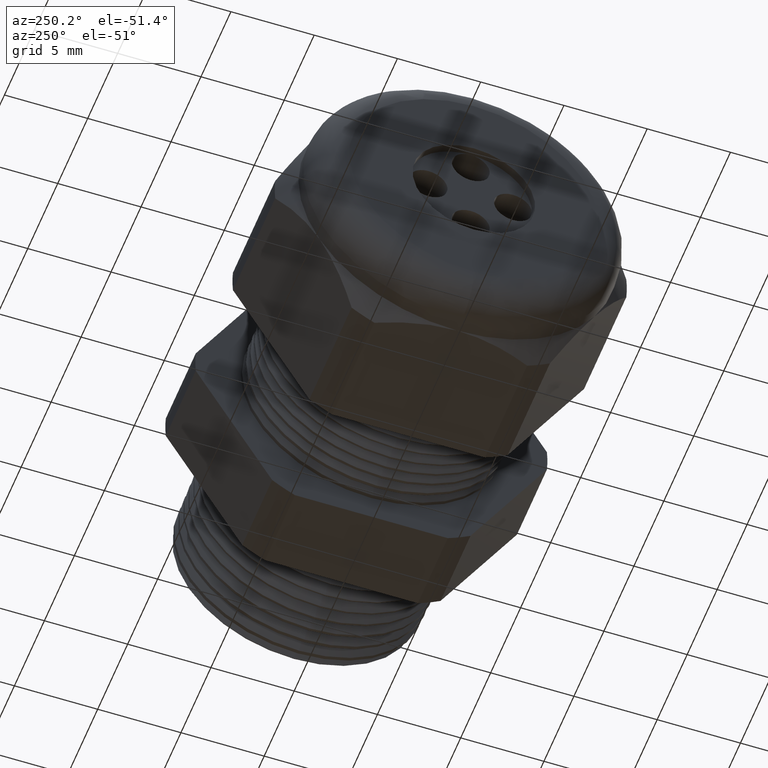
[diagram: clean part render]
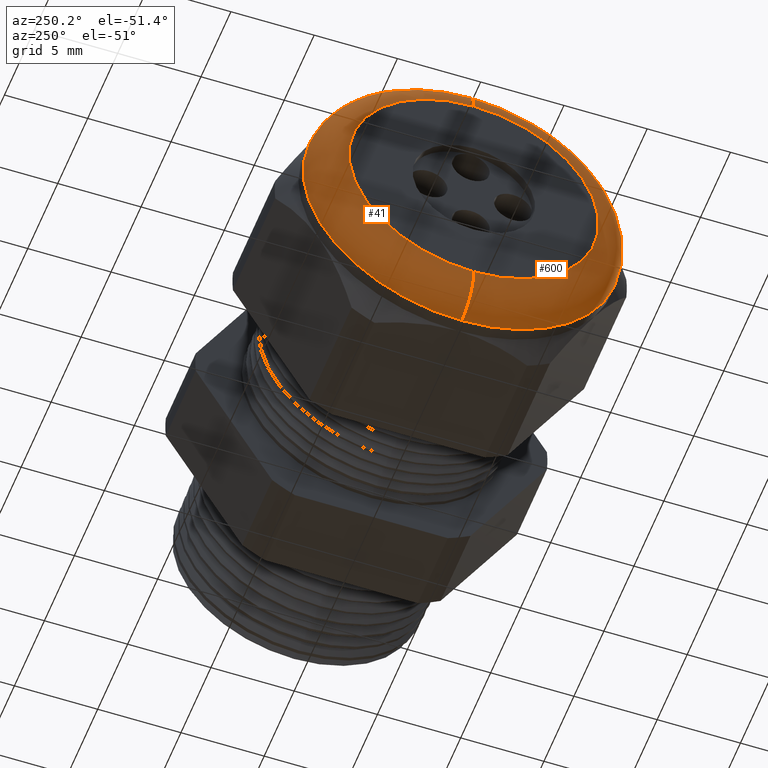
[diagram: same view with one multi-face feature highlighted, each face labeled with its STEP entity id]
A machine part, auxiliary view. The highlighted faces form ONE feature: a constant-radius fillet chain: 2 tangent blend faces with common blend radius 2.032 mm. The faces share edges in the B-rep.
Their STEP definitions:
[1] entity #600 (Torus):
#27 = VERTEX_POINT ( 'NONE', #1283 ) ;
#32 = VERTEX_POINT ( 'NONE', #1272 ) ;
#37 = VERTEX_POINT ( 'NONE', #1262 ) ;
#38 = VERTEX_POINT ( 'NONE', #1261 ) ;
#40 = EDGE_CURVE ( 'NONE', #27, #38, #1321, .T. ) ;
#58 = EDGE_CURVE ( 'NONE', #37, #32, #1353, .T. ) ;
#374 = EDGE_CURVE ( 'NONE', #37, #27, #1920, .T. ) ;
#445 = EDGE_CURVE ( 'NONE', #38, #32, #2054, .T. ) ;
#600 = ADVANCED_FACE ( 'NONE', ( #2289 ), #2288, .T. ) ;
#601 = EDGE_LOOP ( 'NONE', ( #602, #603, #604, #605 ) ) ;
#602 = ORIENTED_EDGE ( 'NONE', *, *, #40, .F. ) ;
#603 = ORIENTED_EDGE ( 'NONE', *, *, #374, .F. ) ;
#604 = ORIENTED_EDGE ( 'NONE', *, *, #58, .T. ) ;
#605 = ORIENTED_EDGE ( 'NONE', *, *, #445, .F. ) ;
#1261 = CARTESIAN_POINT ( 'NONE',  ( -1.179999999999999900, 4.102566777143634000E-017, -0.2950000000000001000 ) ) ;
#1262 = CARTESIAN_POINT ( 'NONE',  ( -1.100000000000000100, 4.592425496802576100E-017, 0.3750000000000001100 ) ) ;
#1272 = CARTESIAN_POINT ( 'NONE',  ( -1.179999999999999900, 0.0000000000000000000, 0.2950000000000001000 ) ) ;
#1283 = CARTESIAN_POINT ( 'NONE',  ( -1.100000000000000100, 0.0000000000000000000, -0.3750000000000001100 ) ) ;
#1293 = CARTESIAN_POINT ( 'NONE',  ( -1.100000000000000100, 0.0000000000000000000, 0.2950000000000001000 ) ) ;
#1317 = DIRECTION ( 'NONE',  ( 0.0000000000000000000, -1.224646799147353500E-016, 1.000000000000000000 ) ) ;
#1318 = DIRECTION ( 'NONE',  ( 0.0000000000000000000, 1.000000000000000000, 1.224646799147353200E-016 ) ) ;
#1319 = CARTESIAN_POINT ( 'NONE',  ( -1.100000000000000100, 3.612708057484693200E-017, -0.2950000000000001000 ) ) ;
#1320 = AXIS2_PLACEMENT_3D ( 'NONE', #1319, #1318, #1317 ) ;
#1321 = CIRCLE ( 'NONE', #1320, 0.08000000000000000200 ) ;
#1350 = DIRECTION ( 'NONE',  ( 0.0000000000000000000, 0.0000000000000000000, -1.000000000000000000 ) ) ;
#1351 = DIRECTION ( 'NONE',  ( 0.0000000000000000000, -1.000000000000000000, 0.0000000000000000000 ) ) ;
#1352 = AXIS2_PLACEMENT_3D ( 'NONE', #1293, #1351, #1350 ) ;
#1353 = CIRCLE ( 'NONE', #1352, 0.08000000000000000200 ) ;
#1919 = AXIS2_PLACEMENT_3D ( 'NONE', #1980, #1979, #1978 ) ;
#1920 = CIRCLE ( 'NONE', #1919, 0.3750000000000001100 ) ;
#1978 = DIRECTION ( 'NONE',  ( 0.0000000000000000000, 0.0000000000000000000, 1.000000000000000000 ) ) ;
#1979 = DIRECTION ( 'NONE',  ( 1.000000000000000000, 0.0000000000000000000, 0.0000000000000000000 ) ) ;
#1980 = CARTESIAN_POINT ( 'NONE',  ( -1.100000000000000100, 0.0000000000000000000, 0.0000000000000000000 ) ) ;
#2050 = DIRECTION ( 'NONE',  ( 0.0000000000000000000, 0.0000000000000000000, 1.000000000000000000 ) ) ;
#2051 = DIRECTION ( 'NONE',  ( -1.000000000000000000, 0.0000000000000000000, 0.0000000000000000000 ) ) ;
#2052 = CARTESIAN_POINT ( 'NONE',  ( -1.179999999999999900, 0.0000000000000000000, 0.0000000000000000000 ) ) ;
#2053 = AXIS2_PLACEMENT_3D ( 'NONE', #2052, #2051, #2050 ) ;
#2054 = CIRCLE ( 'NONE', #2053, 0.2950000000000001000 ) ;
#2285 = DIRECTION ( 'NONE',  ( 0.0000000000000000000, 0.0000000000000000000, 1.000000000000000000 ) ) ;
#2286 = DIRECTION ( 'NONE',  ( -1.000000000000000000, 0.0000000000000000000, 0.0000000000000000000 ) ) ;
#2287 = AXIS2_PLACEMENT_3D ( 'NONE', #2293, #2286, #2285 ) ;
#2288 = TOROIDAL_SURFACE ( 'NONE', #2287, 0.2950000000000001000, 0.08000000000000000200 ) ;
#2289 = FACE_OUTER_BOUND ( 'NONE', #601, .T. ) ;
#2293 = CARTESIAN_POINT ( 'NONE',  ( -1.100000000000000100, 0.0000000000000000000, 0.0000000000000000000 ) ) ;
[2] entity #41 (Torus):
#25 = EDGE_LOOP ( 'NONE', ( #39, #33, #34, #60 ) ) ;
#26 = EDGE_CURVE ( 'NONE', #27, #37, #1288, .T. ) ;
#27 = VERTEX_POINT ( 'NONE', #1283 ) ;
#32 = VERTEX_POINT ( 'NONE', #1272 ) ;
#33 = ORIENTED_EDGE ( 'NONE', *, *, #40, .T. ) ;
#34 = ORIENTED_EDGE ( 'NONE', *, *, #35, .F. ) ;
#35 = EDGE_CURVE ( 'NONE', #32, #38, #1270, .T. ) ;
#37 = VERTEX_POINT ( 'NONE', #1262 ) ;
#38 = VERTEX_POINT ( 'NONE', #1261 ) ;
#39 = ORIENTED_EDGE ( 'NONE', *, *, #26, .F. ) ;
#40 = EDGE_CURVE ( 'NONE', #27, #38, #1321, .T. ) ;
#41 = ADVANCED_FACE ( 'NONE', ( #1322 ), #1315, .T. ) ;
#58 = EDGE_CURVE ( 'NONE', #37, #32, #1353, .T. ) ;
#60 = ORIENTED_EDGE ( 'NONE', *, *, #58, .F. ) ;
#1261 = CARTESIAN_POINT ( 'NONE',  ( -1.179999999999999900, 4.102566777143634000E-017, -0.2950000000000001000 ) ) ;
#1262 = CARTESIAN_POINT ( 'NONE',  ( -1.100000000000000100, 4.592425496802576100E-017, 0.3750000000000001100 ) ) ;
#1266 = DIRECTION ( 'NONE',  ( 0.0000000000000000000, 0.0000000000000000000, 1.000000000000000000 ) ) ;
#1267 = DIRECTION ( 'NONE',  ( -1.000000000000000000, 0.0000000000000000000, 0.0000000000000000000 ) ) ;
#1268 = CARTESIAN_POINT ( 'NONE',  ( -1.179999999999999900, 0.0000000000000000000, 0.0000000000000000000 ) ) ;
#1269 = AXIS2_PLACEMENT_3D ( 'NONE', #1268, #1267, #1266 ) ;
#1270 = CIRCLE ( 'NONE', #1269, 0.2950000000000001000 ) ;
#1272 = CARTESIAN_POINT ( 'NONE',  ( -1.179999999999999900, 0.0000000000000000000, 0.2950000000000001000 ) ) ;
#1283 = CARTESIAN_POINT ( 'NONE',  ( -1.100000000000000100, 0.0000000000000000000, -0.3750000000000001100 ) ) ;
#1284 = DIRECTION ( 'NONE',  ( 0.0000000000000000000, 0.0000000000000000000, 1.000000000000000000 ) ) ;
#1285 = DIRECTION ( 'NONE',  ( 1.000000000000000000, 0.0000000000000000000, 0.0000000000000000000 ) ) ;
#1286 = CARTESIAN_POINT ( 'NONE',  ( -1.100000000000000100, 0.0000000000000000000, 0.0000000000000000000 ) ) ;
#1287 = AXIS2_PLACEMENT_3D ( 'NONE', #1286, #1285, #1284 ) ;
#1288 = CIRCLE ( 'NONE', #1287, 0.3750000000000001100 ) ;
#1293 = CARTESIAN_POINT ( 'NONE',  ( -1.100000000000000100, 0.0000000000000000000, 0.2950000000000001000 ) ) ;
#1312 = DIRECTION ( 'NONE',  ( 0.0000000000000000000, 0.0000000000000000000, 1.000000000000000000 ) ) ;
#1313 = DIRECTION ( 'NONE',  ( -1.000000000000000000, 0.0000000000000000000, 0.0000000000000000000 ) ) ;
#1314 = AXIS2_PLACEMENT_3D ( 'NONE', #1316, #1313, #1312 ) ;
#1315 = TOROIDAL_SURFACE ( 'NONE', #1314, 0.2950000000000001000, 0.08000000000000000200 ) ;
#1316 = CARTESIAN_POINT ( 'NONE',  ( -1.100000000000000100, 0.0000000000000000000, 0.0000000000000000000 ) ) ;
#1317 = DIRECTION ( 'NONE',  ( 0.0000000000000000000, -1.224646799147353500E-016, 1.000000000000000000 ) ) ;
#1318 = DIRECTION ( 'NONE',  ( 0.0000000000000000000, 1.000000000000000000, 1.224646799147353200E-016 ) ) ;
#1319 = CARTESIAN_POINT ( 'NONE',  ( -1.100000000000000100, 3.612708057484693200E-017, -0.2950000000000001000 ) ) ;
#1320 = AXIS2_PLACEMENT_3D ( 'NONE', #1319, #1318, #1317 ) ;
#1321 = CIRCLE ( 'NONE', #1320, 0.08000000000000000200 ) ;
#1322 = FACE_OUTER_BOUND ( 'NONE', #25, .T. ) ;
#1350 = DIRECTION ( 'NONE',  ( 0.0000000000000000000, 0.0000000000000000000, -1.000000000000000000 ) ) ;
#1351 = DIRECTION ( 'NONE',  ( 0.0000000000000000000, -1.000000000000000000, 0.0000000000000000000 ) ) ;
#1352 = AXIS2_PLACEMENT_3D ( 'NONE', #1293, #1351, #1350 ) ;
#1353 = CIRCLE ( 'NONE', #1352, 0.08000000000000000200 ) ;